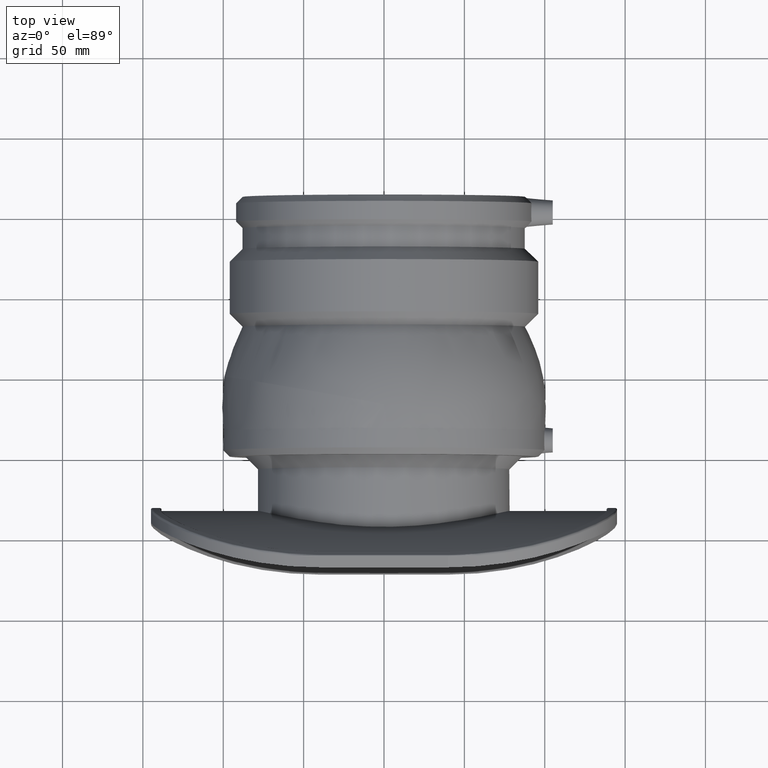
[diagram: clean part render]
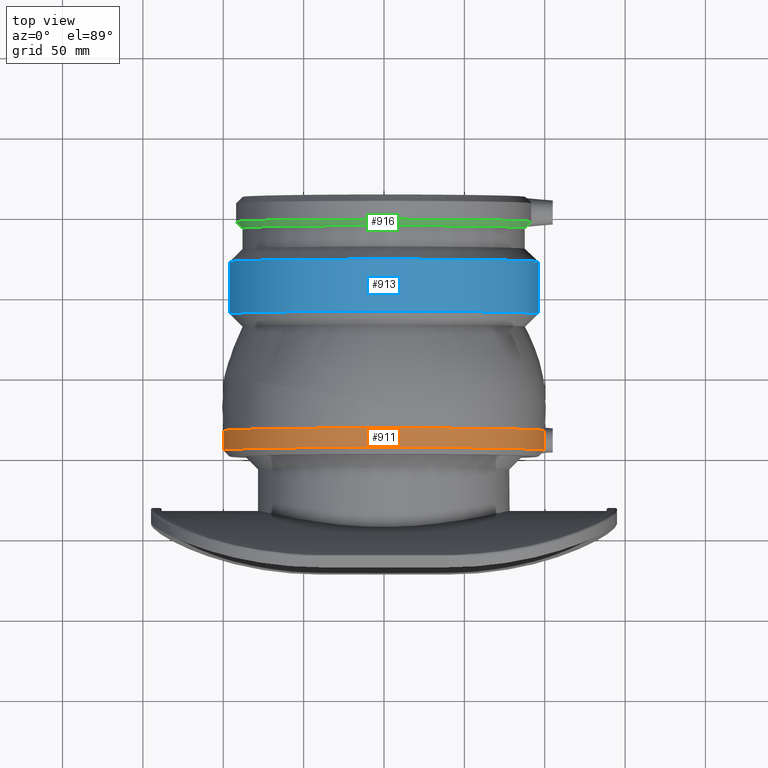
[diagram: same view with three faces highlighted in distinct colors, each labeled with its STEP entity id]
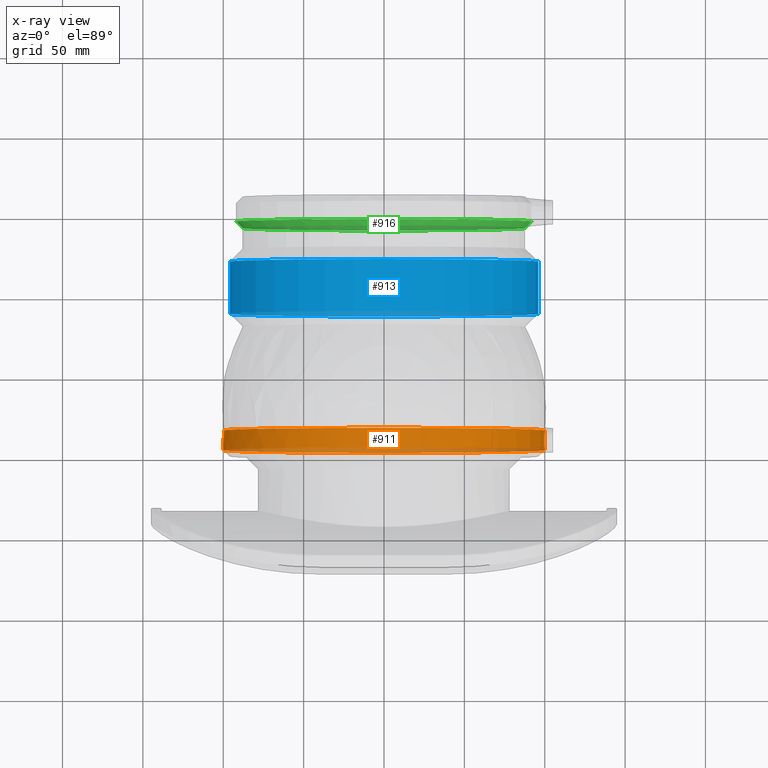
[diagram: x-ray of the same camera — body ghosted, the three highlighted faces saturated]
A machine part, top view with three faces highlighted in distinct colors.
The next image is the same camera in x-ray (body ghosted, the three faces saturated) — at least one of them is partly hidden behind the body in this view.
Their STEP definitions:

[orange] entity #911 — the highlighted cylindrical surface (partial cylindrical patch) has radius 100 mm, axis along (0, 1, 0).
#92=B_SPLINE_CURVE_WITH_KNOTS('',3,(#1446,#1447,#1448,#1449,#1450,#1451,
#1452,#1453,#1454,#1455,#1456,#1457,#1458,#1459),.UNSPECIFIED.,.F.,.F.,
(4,2,2,2,2,2,4),(1.7300730049395,1.79767832318105,2.09745152602217,2.39722472886329,
2.69699793170441,2.99677113454553,3.06437645278707),.UNSPECIFIED.);
#94=B_SPLINE_CURVE_WITH_KNOTS('',3,(#1471,#1472,#1473,#1474,#1475,#1476,
#1477,#1478,#1479,#1480,#1481,#1482,#1483,#1484,#1485),.UNSPECIFIED.,.F.,
 .F.,(4,2,2,3,2,2,4),(-0.667151723914192,-0.599546405682241,-0.299773202841121,
0.,0.29977320284112,0.59954640568224,0.667151723923787),.UNSPECIFIED.);
#175=CYLINDRICAL_SURFACE('',#1006,100.);
#218=FACE_OUTER_BOUND('',#309,.T.);
#309=EDGE_LOOP('',(#683,#684,#685,#686));
#377=CIRCLE('',#985,100.);
#387=CIRCLE('',#1005,100.);
#436=VERTEX_POINT('',#1429);
#437=VERTEX_POINT('',#1430);
#438=VERTEX_POINT('',#1445);
#439=VERTEX_POINT('',#1460);
#522=EDGE_CURVE('',#438,#436,#92,.T.);
#524=EDGE_CURVE('',#437,#439,#94,.T.);
#527=EDGE_CURVE('',#438,#439,#377,.T.);
#539=EDGE_CURVE('',#436,#437,#387,.T.);
#683=ORIENTED_EDGE('',*,*,#524,.T.);
#684=ORIENTED_EDGE('',*,*,#527,.F.);
#685=ORIENTED_EDGE('',*,*,#522,.T.);
#686=ORIENTED_EDGE('',*,*,#539,.T.);
#911=ADVANCED_FACE('',(#218),#175,.T.);
#985=AXIS2_PLACEMENT_3D('',#1491,#1131,#1132);
#1005=AXIS2_PLACEMENT_3D('',#1654,#1171,#1172);
#1006=AXIS2_PLACEMENT_3D('',#1655,#1173,#1174);
#1131=DIRECTION('center_axis',(0.,1.,0.));
#1132=DIRECTION('ref_axis',(1.,0.,0.));
#1171=DIRECTION('center_axis',(0.,1.,0.));
#1172=DIRECTION('ref_axis',(1.,0.,0.));
#1173=DIRECTION('center_axis',(0.,1.,0.));
#1174=DIRECTION('ref_axis',(-1.,0.,0.));
#1429=CARTESIAN_POINT('',(99.8688193010284,3.99999999999999,-5.12044250221947));
#1430=CARTESIAN_POINT('',(99.8688193010284,3.99999999999999,5.12044250221947));
#1445=CARTESIAN_POINT('',(99.8688193010284,16.16,-5.12044250221947));
#1446=CARTESIAN_POINT('Ctrl Pts',(99.8688193010284,16.16,-5.1204425022195));
#1447=CARTESIAN_POINT('Ctrl Pts',(99.8597292515578,16.0117284670431,-5.29773431003136));
#1448=CARTESIAN_POINT('Ctrl Pts',(99.8505972040656,15.8573322363378,-5.46660886480918));
#1449=CARTESIAN_POINT('Ctrl Pts',(99.8017029974032,14.9945377514259,-6.33426554777979));
#1450=CARTESIAN_POINT('Ctrl Pts',(99.7591169443226,14.1020122014731,-6.94879520854261));
#1451=CARTESIAN_POINT('Ctrl Pts',(99.6989605367496,12.1443881078329,-7.76430533330799));
#1452=CARTESIAN_POINT('Ctrl Pts',(99.6822699091495,11.0792440094704,-7.9652410986401));
#1453=CARTESIAN_POINT('Ctrl Pts',(99.6822699091495,9.0807559905296,-7.9652410986401));
#1454=CARTESIAN_POINT('Ctrl Pts',(99.6989605367496,8.01561189216708,-7.76430533330799));
#1455=CARTESIAN_POINT('Ctrl Pts',(99.7591169443226,6.05798779852693,-6.94879520854261));
#1456=CARTESIAN_POINT('Ctrl Pts',(99.8017029974032,5.16546224857414,-6.33426554777979));
#1457=CARTESIAN_POINT('Ctrl Pts',(99.8505972040656,4.30266776366217,-5.46660886480919));
#1458=CARTESIAN_POINT('Ctrl Pts',(99.8597292515578,4.14827153295693,-5.29773431003137));
#1459=CARTESIAN_POINT('Ctrl Pts',(99.8688193010284,3.99999999999996,-5.1204425022195));
#1460=CARTESIAN_POINT('',(99.8688193010284,16.16,5.12044250221947));
#1471=CARTESIAN_POINT('Ctrl Pts',(99.8688193010284,3.99999999999996,5.1204425022195));
#1472=CARTESIAN_POINT('Ctrl Pts',(99.8597292515569,4.14827153297168,5.297734310049));
#1473=CARTESIAN_POINT('Ctrl Pts',(99.8505972040643,4.30266776368471,5.46660886483185));
#1474=CARTESIAN_POINT('Ctrl Pts',(99.8017029974032,5.16546224857413,6.33426554777979));
#1475=CARTESIAN_POINT('Ctrl Pts',(99.7591169443226,6.05798779852692,6.94879520854261));
#1476=CARTESIAN_POINT('Ctrl Pts',(99.6989605367495,8.01561189216707,7.76430533330799));
#1477=CARTESIAN_POINT('Ctrl Pts',(99.6822699091495,9.0807559905296,7.9652410986401));
#1478=CARTESIAN_POINT('Ctrl Pts',(99.6822699091495,10.08,7.9652410986401));
#1479=CARTESIAN_POINT('Ctrl Pts',(99.6822699091495,11.0792440094704,7.9652410986401));
#1480=CARTESIAN_POINT('Ctrl Pts',(99.6989605367496,12.1443881078329,7.76430533330799));
#1481=CARTESIAN_POINT('Ctrl Pts',(99.7591169443226,14.1020122014731,6.94879520854261));
#1482=CARTESIAN_POINT('Ctrl Pts',(99.8017029974032,14.9945377514259,6.33426554777979));
#1483=CARTESIAN_POINT('Ctrl Pts',(99.8505972040656,15.8573322363378,5.46660886480919));
#1484=CARTESIAN_POINT('Ctrl Pts',(99.8597292515578,16.0117284670431,5.29773431003137));
#1485=CARTESIAN_POINT('Ctrl Pts',(99.8688193010284,16.16,5.1204425022195));
#1491=CARTESIAN_POINT('Origin',(0.,16.16,0.));
#1654=CARTESIAN_POINT('Origin',(0.,3.99999999999999,0.));
#1655=CARTESIAN_POINT('Origin',(0.,10.08,0.));

[blue] entity #913 — the highlighted cylindrical surface (bore or boss wall) has radius 96 mm, axis along (0, 1, 0).
#157=FACE_BOUND('',#313,.T.);
#176=CYLINDRICAL_SURFACE('',#1009,96.);
#220=FACE_OUTER_BOUND('',#312,.T.);
#312=EDGE_LOOP('',(#689));
#313=EDGE_LOOP('',(#690));
#388=CIRCLE('',#1008,96.);
#389=CIRCLE('',#1010,96.);
#452=VERTEX_POINT('',#1657);
#453=VERTEX_POINT('',#1660);
#540=EDGE_CURVE('',#452,#452,#388,.T.);
#541=EDGE_CURVE('',#453,#453,#389,.T.);
#689=ORIENTED_EDGE('',*,*,#541,.F.);
#690=ORIENTED_EDGE('',*,*,#540,.T.);
#913=ADVANCED_FACE('',(#220,#157),#176,.T.);
#1008=AXIS2_PLACEMENT_3D('',#1658,#1177,#1178);
#1009=AXIS2_PLACEMENT_3D('',#1659,#1179,#1180);
#1010=AXIS2_PLACEMENT_3D('',#1661,#1181,#1182);
#1177=DIRECTION('center_axis',(0.,1.,0.));
#1178=DIRECTION('ref_axis',(1.,0.,0.));
#1179=DIRECTION('center_axis',(0.,1.,0.));
#1180=DIRECTION('ref_axis',(-1.,0.,0.));
#1181=DIRECTION('center_axis',(0.,1.,0.));
#1182=DIRECTION('ref_axis',(1.,0.,0.));
#1657=CARTESIAN_POINT('',(-96.,88.8,0.));
#1658=CARTESIAN_POINT('Origin',(0.,88.8,0.));
#1659=CARTESIAN_POINT('Origin',(0.,105.04,0.));
#1660=CARTESIAN_POINT('',(-96.,121.28,0.));
#1661=CARTESIAN_POINT('Origin',(0.,121.28,0.));

[green] entity #916 — the highlighted conical surface has half-angle 45 deg.
#87=B_SPLINE_CURVE_WITH_KNOTS('',3,(#1377,#1378,#1379,#1380,#1381,#1382,
#1383,#1384,#1385,#1386,#1387,#1388,#1389,#1390),.UNSPECIFIED.,.F.,.F.,
(4,2,2,2,2,2,4),(1.4263817693966,1.6404548415016,1.93214353787838,2.22383223425516,
2.51552093063194,2.80720962700873,3.02128269911373),.UNSPECIFIED.);
#131=CONICAL_SURFACE('',#1015,90.,45.);
#160=FACE_BOUND('',#319,.T.);
#223=FACE_OUTER_BOUND('',#318,.T.);
#318=EDGE_LOOP('',(#695,#696));
#319=EDGE_LOOP('',(#697));
#391=CIRCLE('',#1014,88.);
#392=CIRCLE('',#1016,92.);
#432=VERTEX_POINT('',#1375);
#433=VERTEX_POINT('',#1376);
#455=VERTEX_POINT('',#1666);
#517=EDGE_CURVE('',#432,#433,#87,.T.);
#543=EDGE_CURVE('',#455,#455,#391,.T.);
#544=EDGE_CURVE('',#432,#433,#392,.T.);
#695=ORIENTED_EDGE('',*,*,#517,.T.);
#696=ORIENTED_EDGE('',*,*,#544,.F.);
#697=ORIENTED_EDGE('',*,*,#543,.T.);
#916=ADVANCED_FACE('',(#223,#160),#131,.T.);
#1014=AXIS2_PLACEMENT_3D('',#1667,#1189,#1190);
#1015=AXIS2_PLACEMENT_3D('',#1668,#1191,#1192);
#1016=AXIS2_PLACEMENT_3D('',#1669,#1193,#1194);
#1189=DIRECTION('center_axis',(0.,1.,0.));
#1190=DIRECTION('ref_axis',(1.,0.,0.));
#1191=DIRECTION('center_axis',(0.,1.,0.));
#1192=DIRECTION('ref_axis',(-1.,0.,0.));
#1193=DIRECTION('center_axis',(0.,1.,0.));
#1194=DIRECTION('ref_axis',(1.,0.,0.));
#1375=CARTESIAN_POINT('',(91.7686795260562,146.208,-6.51992776370901));
#1376=CARTESIAN_POINT('',(91.7686795260562,146.208,6.51992776370901));
#1377=CARTESIAN_POINT('Ctrl Pts',(91.7686795260563,146.208,-6.51992776370892));
#1378=CARTESIAN_POINT('Ctrl Pts',(91.3171444325082,145.731837040114,-6.15639413253726));
#1379=CARTESIAN_POINT('Ctrl Pts',(90.9009424978453,145.288540171165,-5.734444240214));
#1380=CARTESIAN_POINT('Ctrl Pts',(90.035577725633,144.360210842786,-4.62470789176811));
#1381=CARTESIAN_POINT('Ctrl Pts',(89.5734533164351,143.85797892466,-3.81167543351705));
#1382=CARTESIAN_POINT('Ctrl Pts',(88.9433415217213,143.168941710032,-1.9861630157502));
#1383=CARTESIAN_POINT('Ctrl Pts',(88.7766399076177,142.984639907618,-0.972295654589273));
#1384=CARTESIAN_POINT('Ctrl Pts',(88.7766399076177,142.984639907618,0.972295654589272));
#1385=CARTESIAN_POINT('Ctrl Pts',(88.9433415217212,143.168941710032,1.98616301575022));
#1386=CARTESIAN_POINT('Ctrl Pts',(89.5734533164351,143.85797892466,3.81167543351707));
#1387=CARTESIAN_POINT('Ctrl Pts',(90.035577725633,144.360210842786,4.62470789176811));
#1388=CARTESIAN_POINT('Ctrl Pts',(90.9009424978453,145.288540171165,5.73444424021401));
#1389=CARTESIAN_POINT('Ctrl Pts',(91.3171444325082,145.731837040114,6.15639413253724));
#1390=CARTESIAN_POINT('Ctrl Pts',(91.7686795260563,146.208,6.51992776370891));
#1666=CARTESIAN_POINT('',(-88.,142.208,0.));
#1667=CARTESIAN_POINT('Origin',(0.,142.208,0.));
#1668=CARTESIAN_POINT('Origin',(0.,144.208,0.));
#1669=CARTESIAN_POINT('Origin',(0.,146.208,0.));